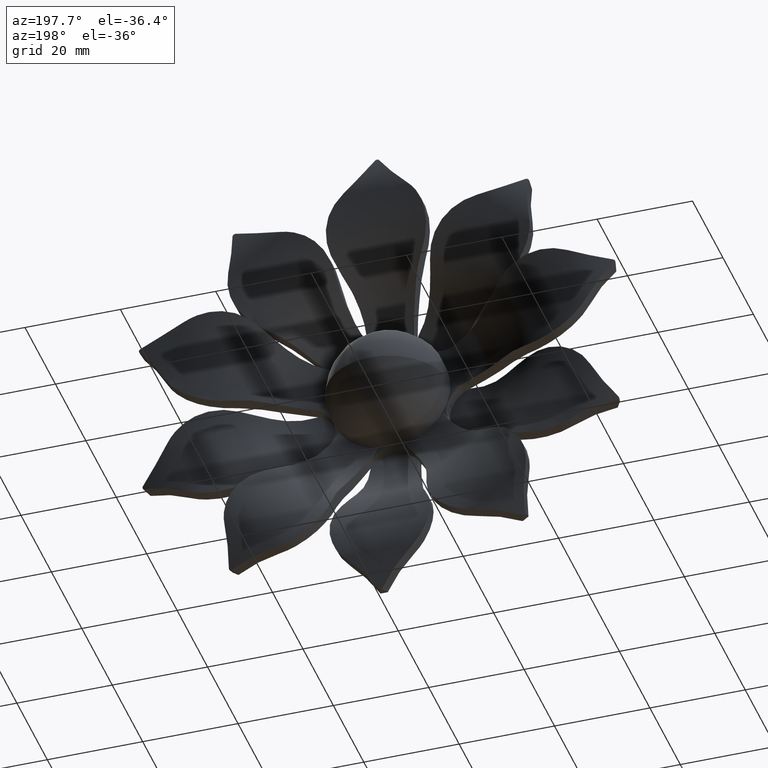
[diagram: clean part render]
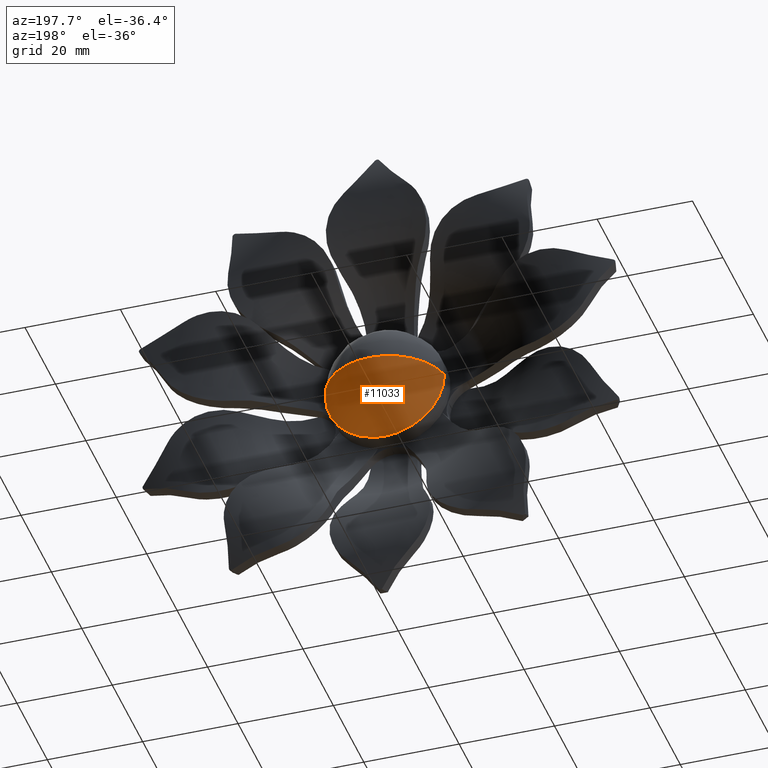
[diagram: same view with one face highlighted and labeled with its STEP entity id]
A machine part, auxiliary view. The second image highlights one B-rep face of the part: STEP entity #11033.
In plain terms, the highlighted spherical surface has radius 12.8125 mm.
Its self-contained STEP definition (entity closure, byte-faithful):
#15 = DIRECTION ( 'NONE',  ( 1.000000000000000000, 0.000000000000000000, 0.000000000000000000 ) ) ;
#1475 = EDGE_CURVE ( 'NONE', #1533, #18933, #10364, .T. ) ;
#1524 = DIRECTION ( 'NONE',  ( 0.000000000000000000, 0.000000000000000000, -1.000000000000000000 ) ) ;
#1533 = VERTEX_POINT ( 'NONE', #18094 ) ;
#1715 = EDGE_CURVE ( 'NONE', #4439, #18368, #15726, .T. ) ;
#3215 = AXIS2_PLACEMENT_3D ( 'NONE', #18122, #3275, #15 ) ;
#3275 = DIRECTION ( 'NONE',  ( 0.000000000000000000, 0.000000000000000000, 1.000000000000000000 ) ) ;
#3626 = DIRECTION ( 'NONE',  ( 1.000000000000000000, 0.000000000000000000, -1.224646799147353207E-16 ) ) ;
#4439 = VERTEX_POINT ( 'NONE', #11856 ) ;
#5733 = ORIENTED_EDGE ( 'NONE', *, *, #17268, .T. ) ;
#5830 = CARTESIAN_POINT ( 'NONE',  ( 0.000000000000000000, 1.187500000000001110, 0.000000000000000000 ) ) ;
#5842 = CARTESIAN_POINT ( 'NONE',  ( -12.50000000000000000, 4.000000000000002665, 1.530808498934191521E-15 ) ) ;
#6168 = AXIS2_PLACEMENT_3D ( 'NONE', #17077, #12657, #17327 ) ;
#6804 = CIRCLE ( 'NONE', #16230, 12.81250000000000178 ) ;
#6906 = ORIENTED_EDGE ( 'NONE', *, *, #11174, .F. ) ;
#6916 = ORIENTED_EDGE ( 'NONE', *, *, #1475, .F. ) ;
#8539 = ORIENTED_EDGE ( 'NONE', *, *, #1715, .F. ) ;
#8992 = CIRCLE ( 'NONE', #6168, 12.50000000000000000 ) ;
#10364 = CIRCLE ( 'NONE', #11013, 12.50000000000000000 ) ;
#10486 = DIRECTION ( 'NONE',  ( 0.000000000000000000, 0.000000000000000000, -1.000000000000000000 ) ) ;
#10752 = DIRECTION ( 'NONE',  ( -0.000000000000000000, -1.000000000000000000, -0.000000000000000000 ) ) ;
#11013 = AXIS2_PLACEMENT_3D ( 'NONE', #13599, #10752, #10486 ) ;
#11033 = ADVANCED_FACE ( 'NONE', ( #14399 ), #12290, .T. ) ;
#11174 = EDGE_CURVE ( 'NONE', #18368, #1533, #8992, .T. ) ;
#11358 = EDGE_LOOP ( 'NONE', ( #8539, #5733, #6916, #6906 ) ) ;
#11856 = CARTESIAN_POINT ( 'NONE',  ( 7.845393557037732262E-16, 14.00000000000000178, 0.000000000000000000 ) ) ;
#11867 = DIRECTION ( 'NONE',  ( -1.000000000000000000, 0.000000000000000000, 0.000000000000000000 ) ) ;
#12290 = SPHERICAL_SURFACE ( 'NONE', #3215, 12.81250000000000178 ) ;
#12569 = CARTESIAN_POINT ( 'NONE',  ( 0.000000000000000000, 1.187500000000001110, 0.000000000000000000 ) ) ;
#12657 = DIRECTION ( 'NONE',  ( -0.000000000000000000, -1.000000000000000000, -0.000000000000000000 ) ) ;
#13599 = CARTESIAN_POINT ( 'NONE',  ( 0.000000000000000000, 4.000000000000002665, 0.000000000000000000 ) ) ;
#14000 = DIRECTION ( 'NONE',  ( 1.224646799147353207E-16, -0.000000000000000000, 1.000000000000000000 ) ) ;
#14399 = FACE_OUTER_BOUND ( 'NONE', #11358, .T. ) ;
#15726 = CIRCLE ( 'NONE', #17979, 12.81250000000000178 ) ;
#15819 = CARTESIAN_POINT ( 'NONE',  ( 12.50000000000000000, 4.000000000000002665, 0.000000000000000000 ) ) ;
#16230 = AXIS2_PLACEMENT_3D ( 'NONE', #5830, #1524, #11867 ) ;
#17077 = CARTESIAN_POINT ( 'NONE',  ( 0.000000000000000000, 4.000000000000002665, 0.000000000000000000 ) ) ;
#17268 = EDGE_CURVE ( 'NONE', #4439, #18933, #6804, .T. ) ;
#17327 = DIRECTION ( 'NONE',  ( 0.000000000000000000, 0.000000000000000000, -1.000000000000000000 ) ) ;
#17979 = AXIS2_PLACEMENT_3D ( 'NONE', #12569, #14000, #3626 ) ;
#18094 = CARTESIAN_POINT ( 'NONE',  ( 0.000000000000000000, 4.000000000000002665, -12.50000000000000000 ) ) ;
#18122 = CARTESIAN_POINT ( 'NONE',  ( 0.000000000000000000, 1.187500000000001110, 0.000000000000000000 ) ) ;
#18368 = VERTEX_POINT ( 'NONE', #5842 ) ;
#18933 = VERTEX_POINT ( 'NONE', #15819 ) ;